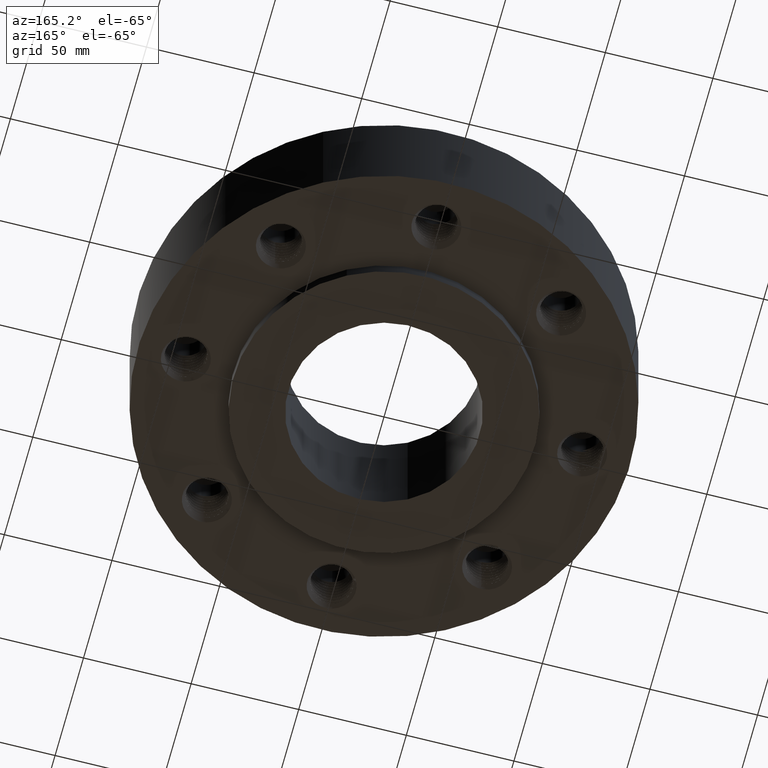
[diagram: clean part render]
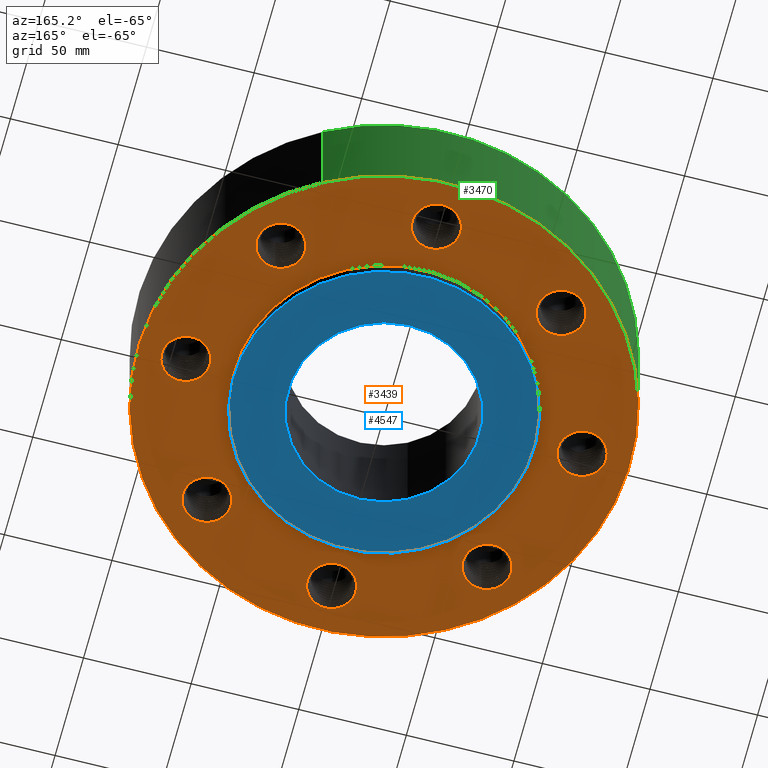
[diagram: same view with three faces highlighted in distinct colors, each labeled with its STEP entity id]
A machine part, auxiliary view with three faces highlighted in distinct colors.
Their STEP definitions:

[orange] entity #3439 — the highlighted planar face has unit normal (0, 0, -1).
#3191=AXIS2_PLACEMENT_3D('Circle Axis2P3D',#3189,#3190,$) ;
#3257=AXIS2_PLACEMENT_3D('Circle Axis2P3D',#3255,#3256,$) ;
#3271=AXIS2_PLACEMENT_3D('Plane Axis2P3D',#3268,#3269,#3270) ;
#3275=AXIS2_PLACEMENT_3D('Circle Axis2P3D',#3273,#3274,$) ;
#3284=AXIS2_PLACEMENT_3D('Circle Axis2P3D',#3282,#3283,$) ;
#3297=AXIS2_PLACEMENT_3D('Circle Axis2P3D',#3295,#3296,$) ;
#3306=AXIS2_PLACEMENT_3D('Circle Axis2P3D',#3304,#3305,$) ;
#3315=AXIS2_PLACEMENT_3D('Circle Axis2P3D',#3313,#3314,$) ;
#3324=AXIS2_PLACEMENT_3D('Circle Axis2P3D',#3322,#3323,$) ;
#3333=AXIS2_PLACEMENT_3D('Circle Axis2P3D',#3331,#3332,$) ;
#3342=AXIS2_PLACEMENT_3D('Circle Axis2P3D',#3340,#3341,$) ;
#3351=AXIS2_PLACEMENT_3D('Circle Axis2P3D',#3349,#3350,$) ;
#3360=AXIS2_PLACEMENT_3D('Circle Axis2P3D',#3358,#3359,$) ;
#3369=AXIS2_PLACEMENT_3D('Circle Axis2P3D',#3367,#3368,$) ;
#3378=AXIS2_PLACEMENT_3D('Circle Axis2P3D',#3376,#3377,$) ;
#3387=AXIS2_PLACEMENT_3D('Circle Axis2P3D',#3385,#3386,$) ;
#3396=AXIS2_PLACEMENT_3D('Circle Axis2P3D',#3394,#3395,$) ;
#3405=AXIS2_PLACEMENT_3D('Circle Axis2P3D',#3403,#3404,$) ;
#3414=AXIS2_PLACEMENT_3D('Circle Axis2P3D',#3412,#3413,$) ;
#3423=AXIS2_PLACEMENT_3D('Circle Axis2P3D',#3421,#3422,$) ;
#3432=AXIS2_PLACEMENT_3D('Circle Axis2P3D',#3430,#3431,$) ;
#3186=CARTESIAN_POINT('Vertex',(2.95185564022,2.77555171031,0.)) ;
#3189=CARTESIAN_POINT('Axis2P3D Location',(2.56326208181,2.56326208181,0.)) ;
#3193=CARTESIAN_POINT('Vertex',(2.1746685234,2.35097245332,0.)) ;
#3255=CARTESIAN_POINT('Axis2P3D Location',(2.56326208181,2.56326208181,0.)) ;
#3268=CARTESIAN_POINT('Axis2P3D Location',(0.,4.50000000002,0.)) ;
#3273=CARTESIAN_POINT('Axis2P3D Location',(0.,0.,0.)) ;
#3277=CARTESIAN_POINT('Vertex',(-2.15741492373,-3.94912152852,-3.91637728372E-014)) ;
#3279=CARTESIAN_POINT('Vertex',(2.15741492373,3.94912152852,-3.91637728372E-014)) ;
#3282=CARTESIAN_POINT('Axis2P3D Location',(0.,0.,0.)) ;
#3295=CARTESIAN_POINT('Axis2P3D Location',(0.,0.,0.)) ;
#3299=CARTESIAN_POINT('Vertex',(1.31842023117,2.41335204521,-2.85336059242E-014)) ;
#3301=CARTESIAN_POINT('Vertex',(-1.31842023117,-2.41335204521,-2.85336059242E-014)) ;
#3304=CARTESIAN_POINT('Axis2P3D Location',(0.,0.,0.)) ;
#3313=CARTESIAN_POINT('Axis2P3D Location',(3.62500000001,5.59482469102E-016,0.)) ;
#3317=CARTESIAN_POINT('Vertex',(4.04988857617,-0.12466570439,0.)) ;
#3319=CARTESIAN_POINT('Vertex',(3.20011142386,0.12466570439,-2.18547839493E-016)) ;
#3322=CARTESIAN_POINT('Axis2P3D Location',(3.62500000001,1.1189649382E-015,0.)) ;
#3331=CARTESIAN_POINT('Axis2P3D Location',(2.56326208181,-2.56326208181,0.)) ;
#3335=CARTESIAN_POINT('Vertex',(2.77555171031,-2.95185564022,0.)) ;
#3337=CARTESIAN_POINT('Vertex',(2.35097245332,-2.1746685234,0.)) ;
#3340=CARTESIAN_POINT('Axis2P3D Location',(2.56326208181,-2.56326208181,0.)) ;
#3349=CARTESIAN_POINT('Axis2P3D Location',(1.71341506163E-015,-3.62500000001,0.)) ;
#3353=CARTESIAN_POINT('Vertex',(-0.12466570439,-4.04988857617,0.)) ;
#3355=CARTESIAN_POINT('Vertex',(0.12466570439,-3.20011142386,-2.18547839493E-016)) ;
#3358=CARTESIAN_POINT('Axis2P3D Location',(7.69288395016E-016,-3.62500000001,0.)) ;
#3367=CARTESIAN_POINT('Axis2P3D Location',(-2.56326208181,-2.56326208181,0.)) ;
#3371=CARTESIAN_POINT('Vertex',(-2.95185564022,-2.77555171031,0.)) ;
#3373=CARTESIAN_POINT('Vertex',(-2.1746685234,-2.35097245332,0.)) ;
#3376=CARTESIAN_POINT('Axis2P3D Location',(-2.56326208181,-2.56326208181,0.)) ;
#3385=CARTESIAN_POINT('Axis2P3D Location',(-3.62500000001,-5.59482469102E-016,0.)) ;
#3389=CARTESIAN_POINT('Vertex',(-4.04988857617,0.12466570439,0.)) ;
#3391=CARTESIAN_POINT('Vertex',(-3.20011142386,-0.12466570439,0.)) ;
#3394=CARTESIAN_POINT('Axis2P3D Location',(-3.62500000001,-1.1189649382E-015,0.)) ;
#3403=CARTESIAN_POINT('Axis2P3D Location',(-2.56326208181,2.56326208181,0.)) ;
#3407=CARTESIAN_POINT('Vertex',(-2.77555171031,2.95185564022,0.)) ;
#3409=CARTESIAN_POINT('Vertex',(-2.35097245332,2.1746685234,0.)) ;
#3412=CARTESIAN_POINT('Axis2P3D Location',(-2.56326208181,2.56326208181,0.)) ;
#3421=CARTESIAN_POINT('Axis2P3D Location',(-1.67844740731E-015,3.62500000001,0.)) ;
#3425=CARTESIAN_POINT('Vertex',(0.12466570439,4.04988857617,0.)) ;
#3427=CARTESIAN_POINT('Vertex',(-0.12466570439,3.20011142386,-2.27289753073E-016)) ;
#3430=CARTESIAN_POINT('Axis2P3D Location',(-1.32877086412E-015,3.62500000001,0.)) ;
#3190=DIRECTION('Axis2P3D Direction',(0.,0.,-0.0393700787402)) ;
#3256=DIRECTION('Axis2P3D Direction',(0.,0.,-0.0393700787402)) ;
#3269=DIRECTION('Axis2P3D Direction',(0.,0.,-0.0393700787402)) ;
#3270=DIRECTION('Axis2P3D XDirection',(0.0393700787402,0.,0.)) ;
#3274=DIRECTION('Axis2P3D Direction',(0.,0.,-0.0393700787402)) ;
#3283=DIRECTION('Axis2P3D Direction',(0.,0.,-0.0393700787402)) ;
#3296=DIRECTION('Axis2P3D Direction',(0.,0.,-0.0393700787402)) ;
#3305=DIRECTION('Axis2P3D Direction',(0.,0.,-0.0393700787402)) ;
#3314=DIRECTION('Axis2P3D Direction',(0.,0.,-0.0393700787402)) ;
#3323=DIRECTION('Axis2P3D Direction',(0.,0.,-0.0393700787402)) ;
#3332=DIRECTION('Axis2P3D Direction',(0.,0.,-0.0393700787402)) ;
#3341=DIRECTION('Axis2P3D Direction',(0.,0.,-0.0393700787402)) ;
#3350=DIRECTION('Axis2P3D Direction',(0.,0.,-0.0393700787402)) ;
#3359=DIRECTION('Axis2P3D Direction',(0.,0.,-0.0393700787402)) ;
#3368=DIRECTION('Axis2P3D Direction',(0.,0.,-0.0393700787402)) ;
#3377=DIRECTION('Axis2P3D Direction',(0.,0.,-0.0393700787402)) ;
#3386=DIRECTION('Axis2P3D Direction',(0.,0.,-0.0393700787402)) ;
#3395=DIRECTION('Axis2P3D Direction',(0.,0.,-0.0393700787402)) ;
#3404=DIRECTION('Axis2P3D Direction',(0.,0.,-0.0393700787402)) ;
#3413=DIRECTION('Axis2P3D Direction',(0.,0.,-0.0393700787402)) ;
#3422=DIRECTION('Axis2P3D Direction',(0.,0.,-0.0393700787402)) ;
#3431=DIRECTION('Axis2P3D Direction',(0.,0.,-0.0393700787402)) ;
#3288=ORIENTED_EDGE('',*,*,#3281,.T.) ;
#3289=ORIENTED_EDGE('',*,*,#3286,.T.) ;
#3292=ORIENTED_EDGE('',*,*,#3259,.F.) ;
#3293=ORIENTED_EDGE('',*,*,#3195,.F.) ;
#3310=ORIENTED_EDGE('',*,*,#3303,.F.) ;
#3311=ORIENTED_EDGE('',*,*,#3308,.F.) ;
#3328=ORIENTED_EDGE('',*,*,#3321,.F.) ;
#3329=ORIENTED_EDGE('',*,*,#3326,.F.) ;
#3346=ORIENTED_EDGE('',*,*,#3339,.F.) ;
#3347=ORIENTED_EDGE('',*,*,#3344,.F.) ;
#3364=ORIENTED_EDGE('',*,*,#3357,.F.) ;
#3365=ORIENTED_EDGE('',*,*,#3362,.F.) ;
#3382=ORIENTED_EDGE('',*,*,#3375,.F.) ;
#3383=ORIENTED_EDGE('',*,*,#3380,.F.) ;
#3400=ORIENTED_EDGE('',*,*,#3393,.F.) ;
#3401=ORIENTED_EDGE('',*,*,#3398,.F.) ;
#3418=ORIENTED_EDGE('',*,*,#3411,.F.) ;
#3419=ORIENTED_EDGE('',*,*,#3416,.F.) ;
#3436=ORIENTED_EDGE('',*,*,#3429,.F.) ;
#3437=ORIENTED_EDGE('',*,*,#3434,.F.) ;
#3294=FACE_BOUND('',#3291,.T.) ;
#3312=FACE_BOUND('',#3309,.T.) ;
#3330=FACE_BOUND('',#3327,.T.) ;
#3348=FACE_BOUND('',#3345,.T.) ;
#3366=FACE_BOUND('',#3363,.T.) ;
#3384=FACE_BOUND('',#3381,.T.) ;
#3402=FACE_BOUND('',#3399,.T.) ;
#3420=FACE_BOUND('',#3417,.T.) ;
#3438=FACE_BOUND('',#3435,.T.) ;
#3439=ADVANCED_FACE('PartBody',(#3290,#3294,#3312,#3330,#3348,#3366,#3384,#3402,#3420,#3438),#3272,.T.) ;
#3192=CIRCLE('generated circle',#3191,0.442800000002) ;
#3258=CIRCLE('generated circle',#3257,0.442800000002) ;
#3276=CIRCLE('generated circle',#3275,4.50000000002) ;
#3285=CIRCLE('generated circle',#3284,4.50000000002) ;
#3298=CIRCLE('generated circle',#3297,2.75000000001) ;
#3307=CIRCLE('generated circle',#3306,2.75000000001) ;
#3316=CIRCLE('generated circle',#3315,0.442800000002) ;
#3325=CIRCLE('generated circle',#3324,0.442800000002) ;
#3334=CIRCLE('generated circle',#3333,0.442800000002) ;
#3343=CIRCLE('generated circle',#3342,0.442800000002) ;
#3352=CIRCLE('generated circle',#3351,0.442800000002) ;
#3361=CIRCLE('generated circle',#3360,0.442800000002) ;
#3370=CIRCLE('generated circle',#3369,0.442800000002) ;
#3379=CIRCLE('generated circle',#3378,0.442800000002) ;
#3388=CIRCLE('generated circle',#3387,0.442800000002) ;
#3397=CIRCLE('generated circle',#3396,0.442800000002) ;
#3406=CIRCLE('generated circle',#3405,0.442800000002) ;
#3415=CIRCLE('generated circle',#3414,0.442800000002) ;
#3424=CIRCLE('generated circle',#3423,0.442800000002) ;
#3433=CIRCLE('generated circle',#3432,0.442800000002) ;
#3195=EDGE_CURVE('',#3187,#3194,#3192,.T.) ;
#3259=EDGE_CURVE('',#3194,#3187,#3258,.T.) ;
#3281=EDGE_CURVE('',#3278,#3280,#3276,.T.) ;
#3286=EDGE_CURVE('',#3280,#3278,#3285,.T.) ;
#3303=EDGE_CURVE('',#3300,#3302,#3298,.T.) ;
#3308=EDGE_CURVE('',#3302,#3300,#3307,.T.) ;
#3321=EDGE_CURVE('',#3318,#3320,#3316,.T.) ;
#3326=EDGE_CURVE('',#3320,#3318,#3325,.T.) ;
#3339=EDGE_CURVE('',#3336,#3338,#3334,.T.) ;
#3344=EDGE_CURVE('',#3338,#3336,#3343,.T.) ;
#3357=EDGE_CURVE('',#3354,#3356,#3352,.T.) ;
#3362=EDGE_CURVE('',#3356,#3354,#3361,.T.) ;
#3375=EDGE_CURVE('',#3372,#3374,#3370,.T.) ;
#3380=EDGE_CURVE('',#3374,#3372,#3379,.T.) ;
#3393=EDGE_CURVE('',#3390,#3392,#3388,.T.) ;
#3398=EDGE_CURVE('',#3392,#3390,#3397,.T.) ;
#3411=EDGE_CURVE('',#3408,#3410,#3406,.T.) ;
#3416=EDGE_CURVE('',#3410,#3408,#3415,.T.) ;
#3429=EDGE_CURVE('',#3426,#3428,#3424,.T.) ;
#3434=EDGE_CURVE('',#3428,#3426,#3433,.T.) ;
#3287=EDGE_LOOP('',(#3288,#3289)) ;
#3291=EDGE_LOOP('',(#3292,#3293)) ;
#3309=EDGE_LOOP('',(#3310,#3311)) ;
#3327=EDGE_LOOP('',(#3328,#3329)) ;
#3345=EDGE_LOOP('',(#3346,#3347)) ;
#3363=EDGE_LOOP('',(#3364,#3365)) ;
#3381=EDGE_LOOP('',(#3382,#3383)) ;
#3399=EDGE_LOOP('',(#3400,#3401)) ;
#3417=EDGE_LOOP('',(#3418,#3419)) ;
#3435=EDGE_LOOP('',(#3436,#3437)) ;
#3290=FACE_OUTER_BOUND('',#3287,.T.) ;
#3272=PLANE('',#3271) ;
#3187=VERTEX_POINT('',#3186) ;
#3194=VERTEX_POINT('',#3193) ;
#3278=VERTEX_POINT('',#3277) ;
#3280=VERTEX_POINT('',#3279) ;
#3300=VERTEX_POINT('',#3299) ;
#3302=VERTEX_POINT('',#3301) ;
#3318=VERTEX_POINT('',#3317) ;
#3320=VERTEX_POINT('',#3319) ;
#3336=VERTEX_POINT('',#3335) ;
#3338=VERTEX_POINT('',#3337) ;
#3354=VERTEX_POINT('',#3353) ;
#3356=VERTEX_POINT('',#3355) ;
#3372=VERTEX_POINT('',#3371) ;
#3374=VERTEX_POINT('',#3373) ;
#3390=VERTEX_POINT('',#3389) ;
#3392=VERTEX_POINT('',#3391) ;
#3408=VERTEX_POINT('',#3407) ;
#3410=VERTEX_POINT('',#3409) ;
#3426=VERTEX_POINT('',#3425) ;
#3428=VERTEX_POINT('',#3427) ;

[blue] entity #4547 — the highlighted planar face has unit normal (0, 0, -1).
#3490=AXIS2_PLACEMENT_3D('Circle Axis2P3D',#3488,#3489,$) ;
#3516=AXIS2_PLACEMENT_3D('Circle Axis2P3D',#3514,#3515,$) ;
#4523=AXIS2_PLACEMENT_3D('Plane Axis2P3D',#4520,#4521,#4522) ;
#4531=AXIS2_PLACEMENT_3D('Circle Axis2P3D',#4529,#4530,$) ;
#4540=AXIS2_PLACEMENT_3D('Circle Axis2P3D',#4538,#4539,$) ;
#3488=CARTESIAN_POINT('Axis2P3D Location',(0.,0.,-0.250000000001)) ;
#3492=CARTESIAN_POINT('Vertex',(1.31842023117,2.41335204521,-0.250000000001)) ;
#3494=CARTESIAN_POINT('Vertex',(-1.31842023117,-2.41335204521,-0.250000000001)) ;
#3514=CARTESIAN_POINT('Axis2P3D Location',(0.,0.,-0.250000000001)) ;
#4520=CARTESIAN_POINT('Axis2P3D Location',(0.,2.75000000001,-0.250000000001)) ;
#4529=CARTESIAN_POINT('Axis2P3D Location',(0.,0.,-0.250000000001)) ;
#4533=CARTESIAN_POINT('Vertex',(0.838994692561,1.53576948331,-0.250000000001)) ;
#4535=CARTESIAN_POINT('Vertex',(-0.838994692561,-1.53576948331,-0.250000000001)) ;
#4538=CARTESIAN_POINT('Axis2P3D Location',(0.,0.,-0.250000000001)) ;
#3489=DIRECTION('Axis2P3D Direction',(0.,0.,-0.0393700787402)) ;
#3515=DIRECTION('Axis2P3D Direction',(0.,0.,-0.0393700787402)) ;
#4521=DIRECTION('Axis2P3D Direction',(0.,0.,-0.0393700787402)) ;
#4522=DIRECTION('Axis2P3D XDirection',(0.0393700787402,0.,0.)) ;
#4530=DIRECTION('Axis2P3D Direction',(0.,0.,-0.0393700787402)) ;
#4539=DIRECTION('Axis2P3D Direction',(0.,0.,-0.0393700787402)) ;
#4526=ORIENTED_EDGE('',*,*,#3518,.T.) ;
#4527=ORIENTED_EDGE('',*,*,#3496,.T.) ;
#4544=ORIENTED_EDGE('',*,*,#4537,.F.) ;
#4545=ORIENTED_EDGE('',*,*,#4542,.F.) ;
#4546=FACE_BOUND('',#4543,.T.) ;
#4547=ADVANCED_FACE('PartBody',(#4528,#4546),#4524,.T.) ;
#3491=CIRCLE('generated circle',#3490,2.75000000001) ;
#3517=CIRCLE('generated circle',#3516,2.75000000001) ;
#4532=CIRCLE('generated circle',#4531,1.75000000001) ;
#4541=CIRCLE('generated circle',#4540,1.75000000001) ;
#3496=EDGE_CURVE('',#3493,#3495,#3491,.T.) ;
#3518=EDGE_CURVE('',#3495,#3493,#3517,.T.) ;
#4537=EDGE_CURVE('',#4534,#4536,#4532,.T.) ;
#4542=EDGE_CURVE('',#4536,#4534,#4541,.T.) ;
#4525=EDGE_LOOP('',(#4526,#4527)) ;
#4543=EDGE_LOOP('',(#4544,#4545)) ;
#4528=FACE_OUTER_BOUND('',#4525,.T.) ;
#4524=PLANE('',#4523) ;
#3493=VERTEX_POINT('',#3492) ;
#3495=VERTEX_POINT('',#3494) ;
#4534=VERTEX_POINT('',#4533) ;
#4536=VERTEX_POINT('',#4535) ;

[green] entity #3470 — the highlighted cylindrical surface (partial cylindrical patch) has radius 114.3 mm, axis along (0, 0, -1).
#3275=AXIS2_PLACEMENT_3D('Circle Axis2P3D',#3273,#3274,$) ;
#3443=AXIS2_PLACEMENT_3D('Cylinder Axis2P3D',#3440,#3441,#3442) ;
#3454=AXIS2_PLACEMENT_3D('Circle Axis2P3D',#3452,#3453,$) ;
#3273=CARTESIAN_POINT('Axis2P3D Location',(0.,0.,0.)) ;
#3277=CARTESIAN_POINT('Vertex',(-2.15741492373,-3.94912152852,-3.91637728372E-014)) ;
#3279=CARTESIAN_POINT('Vertex',(2.15741492373,3.94912152852,-3.91637728372E-014)) ;
#3440=CARTESIAN_POINT('Axis2P3D Location',(0.,0.,0.935000000004)) ;
#3445=CARTESIAN_POINT('Line Origine',(-2.15741492373,-3.94912152852,1.06)) ;
#3449=CARTESIAN_POINT('Vertex',(-2.15741492373,-3.94912152852,2.12000000001)) ;
#3452=CARTESIAN_POINT('Axis2P3D Location',(0.,0.,2.12000000001)) ;
#3456=CARTESIAN_POINT('Vertex',(2.15741492373,3.94912152852,2.12000000001)) ;
#3459=CARTESIAN_POINT('Line Origine',(2.15741492373,3.94912152852,1.06)) ;
#3274=DIRECTION('Axis2P3D Direction',(0.,0.,-0.0393700787402)) ;
#3441=DIRECTION('Axis2P3D Direction',(0.,0.,-0.0393700787402)) ;
#3442=DIRECTION('Axis2P3D XDirection',(0.0188750212049,0.0345504945626,0.)) ;
#3446=DIRECTION('Vector Direction',(0.,0.,-0.0393700787402)) ;
#3453=DIRECTION('Axis2P3D Direction',(0.,0.,-0.0393700787402)) ;
#3460=DIRECTION('Vector Direction',(0.,0.,-0.0393700787402)) ;
#3447=VECTOR('Line Direction',#3446,0.0393700787402) ;
#3461=VECTOR('Line Direction',#3460,0.0393700787402) ;
#3465=ORIENTED_EDGE('',*,*,#3281,.F.) ;
#3466=ORIENTED_EDGE('',*,*,#3451,.T.) ;
#3467=ORIENTED_EDGE('',*,*,#3458,.T.) ;
#3468=ORIENTED_EDGE('',*,*,#3463,.F.) ;
#3470=ADVANCED_FACE('PartBody',(#3469),#3444,.T.) ;
#3276=CIRCLE('generated circle',#3275,4.50000000002) ;
#3455=CIRCLE('generated circle',#3454,4.50000000002) ;
#3444=CYLINDRICAL_SURFACE('generated cylinder',#3443,4.50000000002) ;
#3281=EDGE_CURVE('',#3278,#3280,#3276,.T.) ;
#3451=EDGE_CURVE('',#3278,#3450,#3448,.F.) ;
#3458=EDGE_CURVE('',#3450,#3457,#3455,.T.) ;
#3463=EDGE_CURVE('',#3280,#3457,#3462,.F.) ;
#3464=EDGE_LOOP('',(#3465,#3466,#3467,#3468)) ;
#3469=FACE_OUTER_BOUND('',#3464,.T.) ;
#3448=LINE('Line',#3445,#3447) ;
#3462=LINE('Line',#3459,#3461) ;
#3278=VERTEX_POINT('',#3277) ;
#3280=VERTEX_POINT('',#3279) ;
#3450=VERTEX_POINT('',#3449) ;
#3457=VERTEX_POINT('',#3456) ;